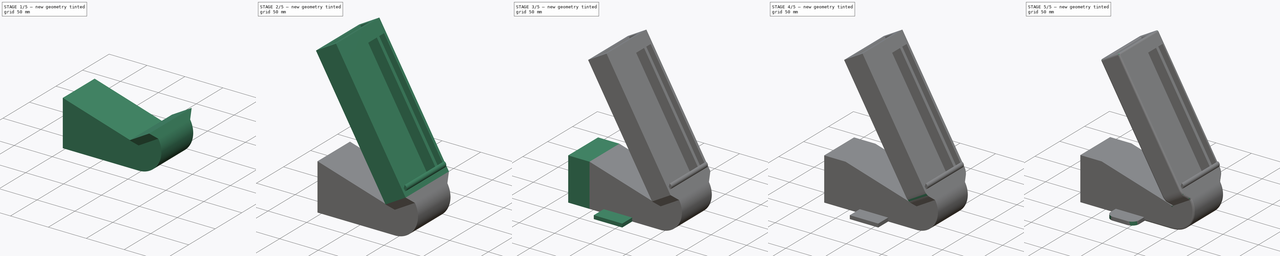
[diagram: build sequence overview — one tinted view per stage of 5, left to right]
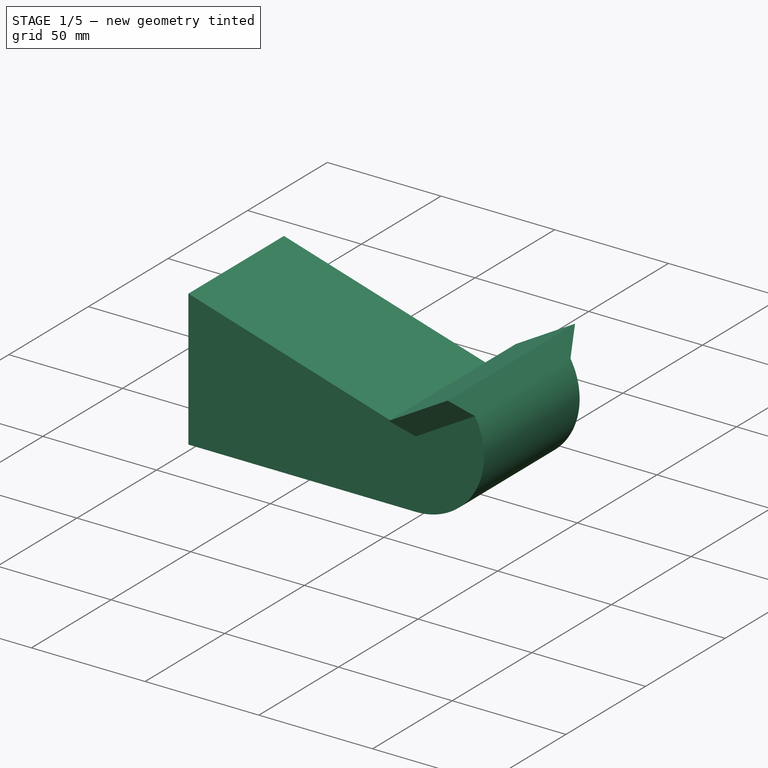
[diagram: stage 1 of 5 — iso view after this stage's code; geometry added in this stage tinted green]
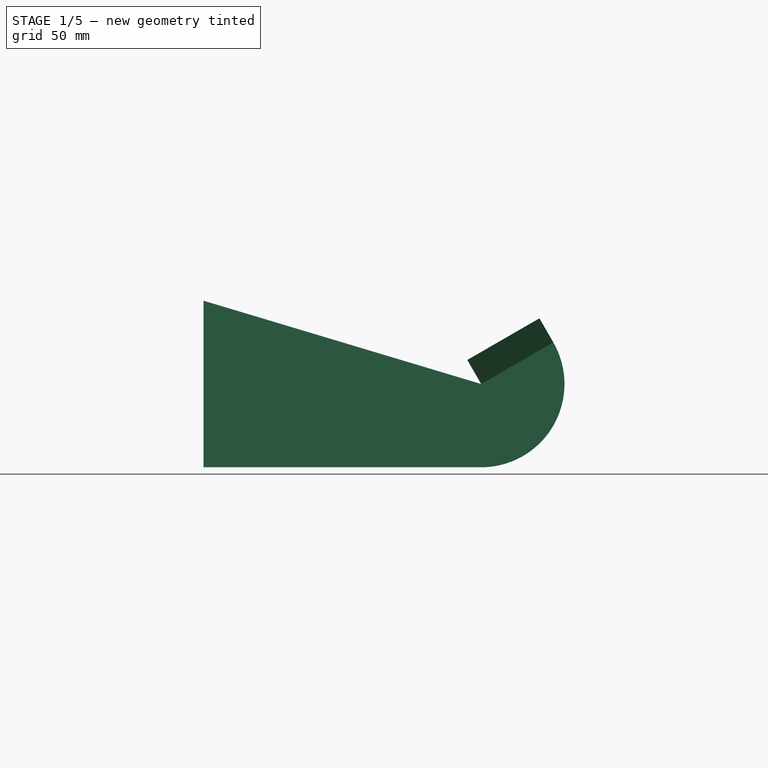
[diagram: stage 1 of 5 — front view after this stage's code; geometry added in this stage tinted green]
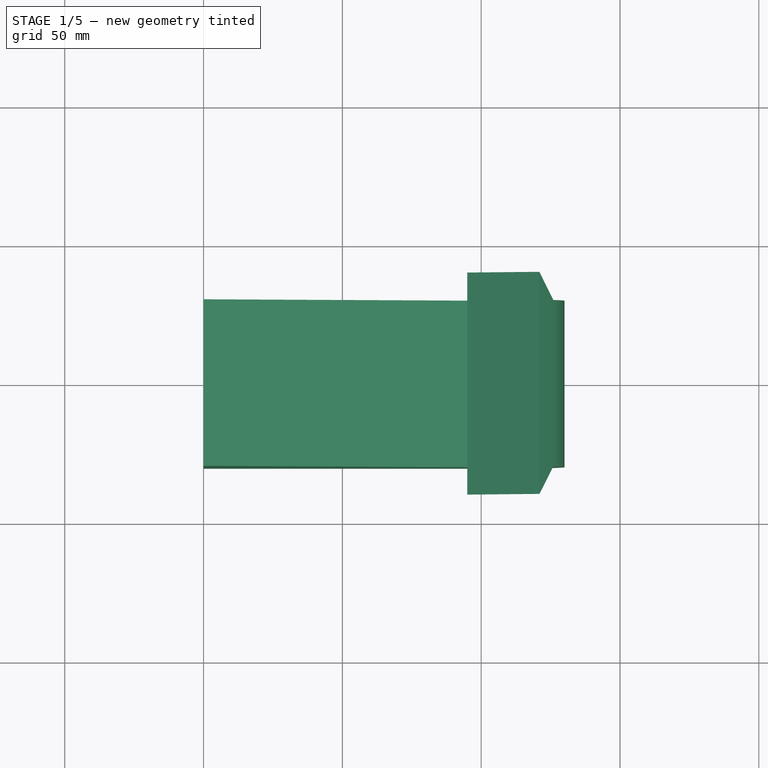
[diagram: stage 1 of 5 — top view after this stage's code; geometry added in this stage tinted green]
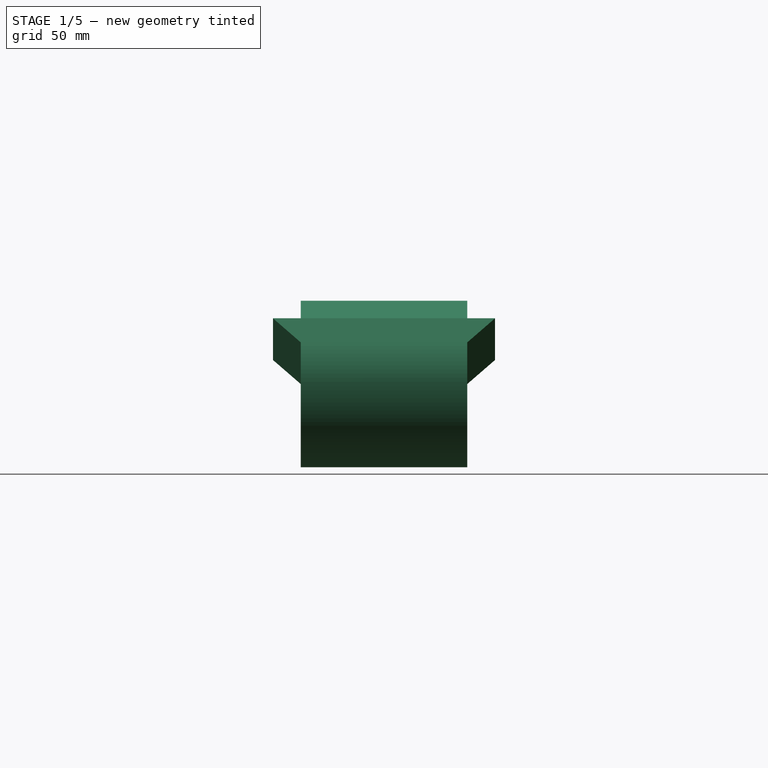
[diagram: stage 1 of 5 — right view after this stage's code; geometry added in this stage tinted green]
FCSTD DOCUMENT  (FreeCAD 1.0R39285 (Git))
Label: phone_cooling_system
License: All rights reserved
objects: Sketcher::SketchObject×13, PartDesign::Pocket×4, PartDesign::Fillet×4, PartDesign::Pad×3, PartDesign::Plane×2, PartDesign::AdditiveLoft×2, PartDesign::Revolution×2, PartDesign::Thickness×1, PartDesign::Hole×1, PartDesign::Body×1
note: 80 computed .brp shape members not serialized (recipe doc carries the construction recipe); baked Part::Feature solids carry a one-line shape summary decoded from their .brp

FEATURE [Sketcher::SketchObject] Sketch
  ArcFitTolerance = 1e-06
  AttachmentSupport = -> [YZ_Plane]
  FullyConstrained = true
  MakeInternals = false
  MapMode = 5
  Placement = pos=(0,0,0) rot=(0.57735,0.57735,0.57735;2.0944rad)
  sketch-geometry (4):
    g0: LineSegment StartX=-30 StartY=0 StartZ=0 EndX=30 EndY=0 EndZ=0
    g1: LineSegment StartX=30 StartY=0 StartZ=0 EndX=30 EndY=60 EndZ=0
    g2: LineSegment StartX=30 StartY=60 StartZ=0 EndX=-30 EndY=60 EndZ=0
    g3: LineSegment StartX=-30 StartY=60 StartZ=0 EndX=-30 EndY=0 EndZ=0
  constraints (12):
    c: Coincident(g0,g1)
    c: Coincident(g1,g2)
    c: Coincident(g2,g3)
    c: Coincident(g3,g0)
    c: Horizontal(g0)
    c: Horizontal(g2)
    c: Vertical(g1)
    c: Vertical(g3)
    c: Distance(g1,g3) = 60
    c: Distance(g0,g2) = 60
    c: PointOnObject(g0,g-1)
    c: Distance(g-2,g1) = 30
FEATURE [PartDesign::Plane] DatumPlane
  AttachmentOffset = pos=(0,0,100) rot=(0,0,1;0rad)
  AttachmentSupport = -> [YZ_Plane]
  Length = 130.582
  MapMode = 5
  Placement = pos=(100,0,0) rot=(0.57735,0.57735,0.57735;2.0944rad)
  ResizeMode = 0
  Width = 264.389
FEATURE [Sketcher::SketchObject] Sketch001
  ArcFitTolerance = 1e-06
  AttachmentSupport = -> [DatumPlane]
  FullyConstrained = true
  MakeInternals = false
  MapMode = 5
  Placement = pos=(100,0,0) rot=(0.57735,0.57735,0.57735;2.0944rad)
  sketch-geometry (4):
    g0: LineSegment StartX=-30 StartY=30 StartZ=0 EndX=-30 EndY=0 EndZ=0
    g1: LineSegment StartX=-30 StartY=0 StartZ=0 EndX=30 EndY=0 EndZ=0
    g2: LineSegment StartX=30 StartY=0 StartZ=0 EndX=30 EndY=30 EndZ=0
    g3: LineSegment StartX=30 StartY=30 StartZ=0 EndX=-30 EndY=30 EndZ=0
  constraints (12):
    c: Coincident(g0,g1)
    c: Coincident(g1,g2)
    c: Coincident(g2,g3)
    c: Coincident(g3,g0)
    c: Vertical(g0)
    c: Vertical(g2)
    c: Horizontal(g1)
    c: Horizontal(g3)
    c: PointOnObject(g0,g-1)
    c: Distance(g-2,g0) = 30
    c: DistanceX(g3,g3) = 60
    c: DistanceY(g2,g2) = 30
FEATURE [PartDesign::AdditiveLoft] AdditiveLoft
  Closed = false
  Placement = pos=(0,0,0) rot=(1,1,1;2.0944rad)
  Profile = -> Sketch
  Refine = true
  Ruled = false
  Sections = -> [Sketch001]
  Suppressed = false
FEATURE [Sketcher::SketchObject] Sketch002
  ArcFitTolerance = 1e-06
  AttachmentSupport = -> [DatumPlane]
  ExternalGeometry = -> [AdditiveLoft]
  FullyConstrained = true
  MakeInternals = false
  MapMode = 5
  Placement = pos=(100,0,0) rot=(0.57735,0.57735,0.57735;2.0944rad)
  sketch-geometry (4):
    g0: LineSegment StartX=-30 StartY=30 StartZ=0 EndX=-30 EndY=2.49e-14 EndZ=0
    g1: LineSegment StartX=-30 StartY=2.49e-14 StartZ=0 EndX=30 EndY=2.49e-14 EndZ=0
    g2: LineSegment StartX=30 StartY=2.49e-14 StartZ=0 EndX=30 EndY=30 EndZ=0
    g3: LineSegment StartX=30 StartY=30 StartZ=0 EndX=-30 EndY=30 EndZ=0
  constraints (11):
    c: Coincident(g0,g1)
    c: Coincident(g1,g2)
    c: Coincident(g2,g3)
    c: Coincident(g3,g0)
    c: Vertical(g0)
    c: Vertical(g2)
    c: Horizontal(g1)
    c: Horizontal(g3)
    c: Coincident(g0,g-3)
    c: DistanceY(g0,g0) = 30
    c: DistanceX(g3,g3) = 60
FEATURE [PartDesign::Revolution] Revolution
  Angle = 120
  Angle2 = 60
  Axis = (0,-1,3e-16)
  Base = (100,30,30)
  BaseFeature = -> AdditiveLoft
  Placement = pos=(0,0,0) rot=(1,1,1;2.0944rad)
  Profile = -> Sketch002
  ReferenceAxis = -> AdditiveLoft [Edge10]
  Refine = true
  Suppressed = false
  Type = 0
FEATURE [PartDesign::Plane] DatumPlane001
  AttachmentOffset = pos=(0,0,10) rot=(0,0,1;0rad)
  AttachmentSupport = -> [Revolution]
  Length = 131.964
  MapMode = 5
  Placement = pos=(7.00962,-6.8e-15,-12.141) rot=(0.250563,-0.250563,-0.935113;1.63783rad)
  ResizeMode = 0
  Width = 287.392
FEATURE [Sketcher::SketchObject] Sketch003
  ArcFitTolerance = 1e-06
  AttachmentSupport = -> [DatumPlane001]
  ExternalGeometry = -> [Revolution]
  FullyConstrained = true
  MakeInternals = false
  MapMode = 5
  Placement = pos=(7.00962,-6.8e-15,-12.141) rot=(0.250563,-0.250563,-0.935113;1.63783rad)
  sketch-geometry (4):
    g0: LineSegment StartX=-40 StartY=101.603 StartZ=0 EndX=40 EndY=101.603 EndZ=0
    g1: LineSegment StartX=40 StartY=101.603 StartZ=0 EndX=40 EndY=131.603 EndZ=0
    g2: LineSegment StartX=40 StartY=131.603 StartZ=0 EndX=-40 EndY=131.603 EndZ=0
    g3: LineSegment StartX=-40 StartY=131.603 StartZ=0 EndX=-40 EndY=101.603 EndZ=0
  constraints (12):
    c: Coincident(g0,g1)
    c: Coincident(g1,g2)
    c: Coincident(g2,g3)
    c: Coincident(g3,g0)
    c: Horizontal(g0)
    c: Horizontal(g2)
    c: Vertical(g1)
    c: Vertical(g3)
    c: DistanceX(g0,g0) = 80
    c: PointOnObject(g0,g-3)
    c: DistanceY(g3,g3) = 30
    c: Distance(g1,g-2) = 40
FEATURE [PartDesign::AdditiveLoft] AdditiveLoft001
  BaseFeature = -> Revolution
  Closed = false
  Placement = pos=(0,0,0) rot=(1,1,1;2.0944rad)
  Profile = -> Revolution [Edge10,Edge11,Edge6,Edge3]
  Refine = true
  Ruled = false
  Sections = -> [Sketch003]
  Suppressed = false
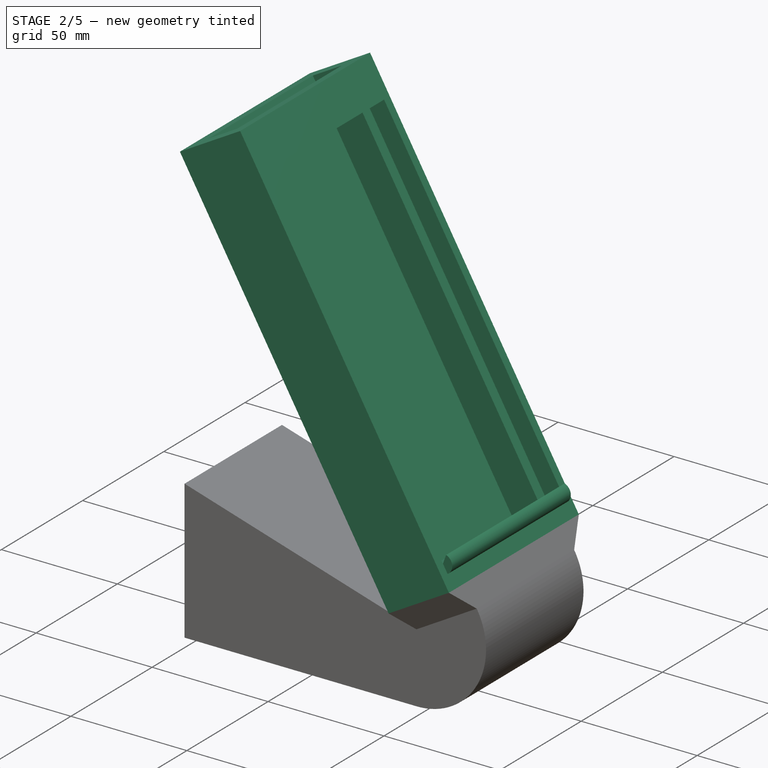
[diagram: stage 2 of 5 — iso view after this stage's code; geometry added in this stage tinted green]
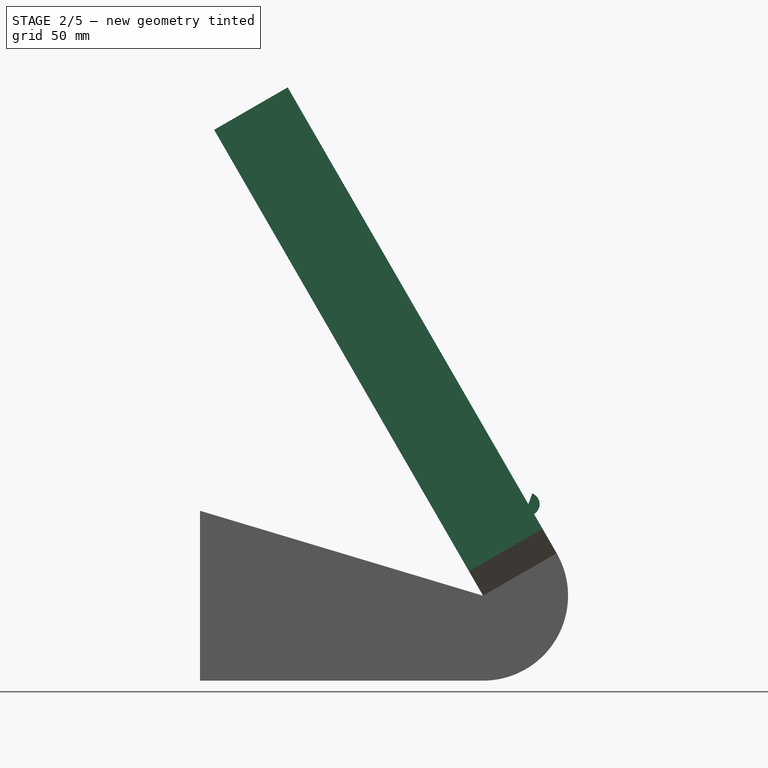
[diagram: stage 2 of 5 — front view after this stage's code; geometry added in this stage tinted green]
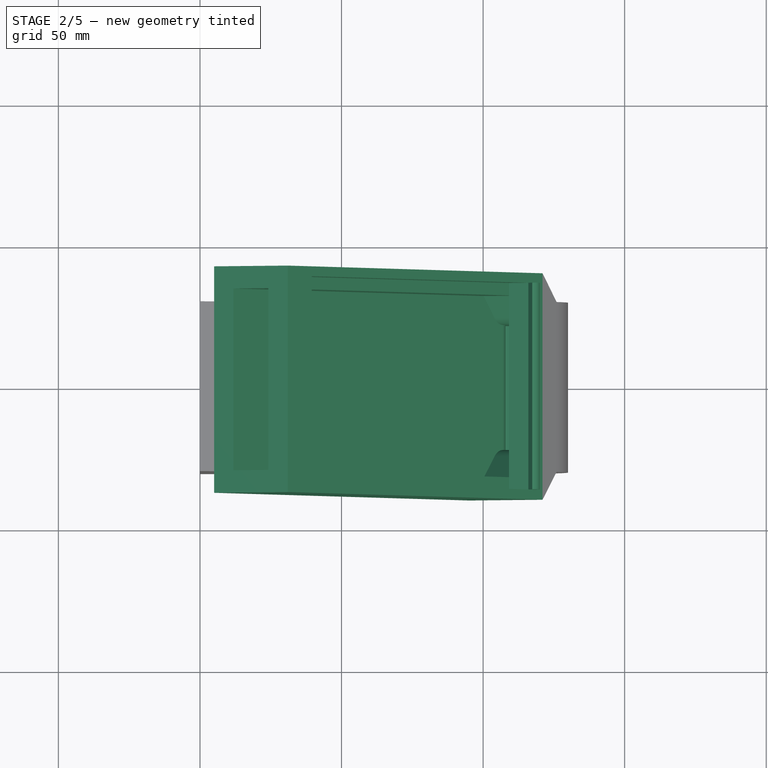
[diagram: stage 2 of 5 — top view after this stage's code; geometry added in this stage tinted green]
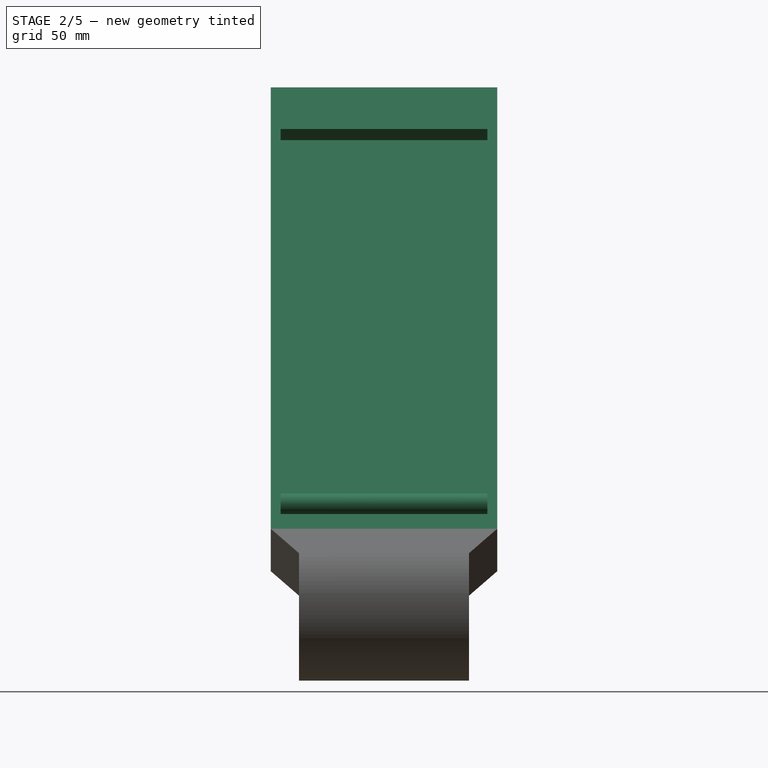
[diagram: stage 2 of 5 — right view after this stage's code; geometry added in this stage tinted green]
FEATURE [Sketcher::SketchObject] Sketch004
  ArcFitTolerance = 1e-06
  AttachmentSupport = -> [DatumPlane001]
  FullyConstrained = true
  MakeInternals = false
  MapMode = 5
  Placement = pos=(7.00962,-6.8e-15,-12.141) rot=(0.250563,-0.250563,-0.935113;1.63783rad)
FEATURE [PartDesign::Pad] Pad
  BaseFeature = -> AdditiveLoft001
  Direction = (-0.5,3e-16,0.866025)
  Length = 180
  Length2 = 10
  Placement = pos=(0,0,0) rot=(1,1,1;2.0944rad)
  Profile = -> AdditiveLoft001 [Edge24,Edge23,Edge11,Edge18]
  Refine = true
  Suppressed = false
  Type = 0
FEATURE [PartDesign::Thickness] Thickness
  Base = -> Pad [Face8,Face16]
  BaseFeature = -> Pad
  Intersection = true
  Join = 0
  Mode = 2
  Refine = true
  Reversed = true
  SupportTransform = false
  Suppressed = false
  Value = 7.9
FEATURE [Sketcher::SketchObject] Sketch005
  ArcFitTolerance = 1e-06
  AttachmentSupport = -> [Thickness]
  FullyConstrained = true
  MakeInternals = false
  MapMode = 5
  Placement = pos=(113.971,5.26e-14,65.8013) rot=(0.447214,0.447214,0.774597;1.82348rad)
  sketch-geometry (4):
    g0: LineSegment StartX=-36.5 StartY=149 StartZ=0 EndX=-36.5 EndY=-4 EndZ=0
    g1: LineSegment StartX=-36.5 StartY=-4 StartZ=0 EndX=36.5 EndY=-4 EndZ=0
    g2: LineSegment StartX=36.5 StartY=-4 StartZ=0 EndX=36.5 EndY=149 EndZ=0
    g3: LineSegment StartX=36.5 StartY=149 StartZ=0 EndX=-36.5 EndY=149 EndZ=0
  constraints (12):
    c: Coincident(g0,g1)
    c: Coincident(g1,g2)
    c: Coincident(g2,g3)
    c: Coincident(g3,g0)
    c: Vertical(g0)
    c: Vertical(g2)
    c: Horizontal(g1)
    c: Horizontal(g3)
    c: Distance(g0,g2) = 73
    c: Distance(g1,g3) = 153
    c: Distance(g-2,g2) = 36.5
    c: Distance(g-1,g1) = 4
FEATURE [PartDesign::Pocket] Pocket
  BaseFeature = -> Thickness
  Direction = (-0.866025,-1e-16,-0.5)
  Length = 7.9
  Length2 = 5
  Profile = -> Sketch005
  ReferenceAxis = -> Sketch005 [N_Axis]
  Refine = true
  Suppressed = false
  Type = 0
FEATURE [Sketcher::SketchObject] Sketch006
  ArcFitTolerance = 1e-06
  AttachmentSupport = -> [Pocket]
  ExternalGeometry = -> [Pocket]
  FullyConstrained = true
  MakeInternals = false
  MapMode = 5
  Placement = pos=(113.971,5.26e-14,65.8013) rot=(0.447214,0.447214,0.774597;1.82348rad)
  sketch-geometry (4):
    g0: LineSegment StartX=-36.5 StartY=-4 StartZ=0 EndX=-36.5 EndY=-8 EndZ=0
    g1: LineSegment StartX=-36.5 StartY=-8 StartZ=0 EndX=36.5 EndY=-8 EndZ=0
    g2: LineSegment StartX=36.5 StartY=-8 StartZ=0 EndX=36.5 EndY=-4 EndZ=0
    g3: LineSegment StartX=36.5 StartY=-4 StartZ=0 EndX=-36.5 EndY=-4 EndZ=0
  constraints (11):
    c: Coincident(g0,g1)
    c: Coincident(g1,g2)
    c: Coincident(g2,g3)
    c: Coincident(g3,g0)
    c: Vertical(g0)
    c: Vertical(g2)
    c: Horizontal(g1)
    c: Horizontal(g3)
    c: Distance(g0,g2) = 73
    c: Distance(g1,g3) = 4
    c: Coincident(g0,g-3)
FEATURE [PartDesign::Revolution] Revolution001
  Angle = 130
  Angle2 = 60
  Axis = (-2e-16,1,1e-16)
  Base = (115.971,-36.5,62.3372)
  BaseFeature = -> Pocket
  Profile = -> Sketch006
  ReferenceAxis = -> Pocket [Edge56]
  Refine = true
  Reversed = true
  Suppressed = false
  Type = 0
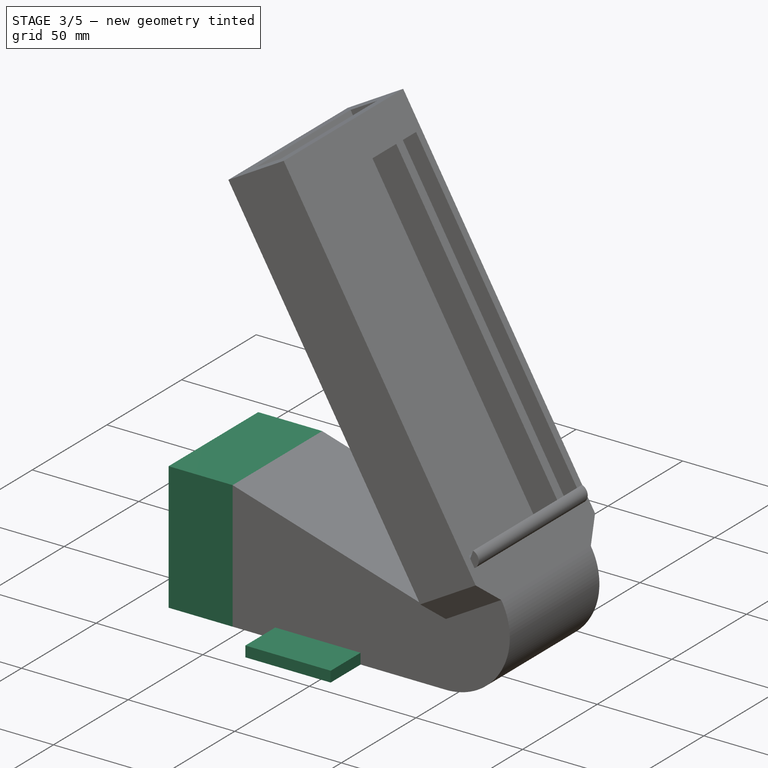
[diagram: stage 3 of 5 — iso view after this stage's code; geometry added in this stage tinted green]
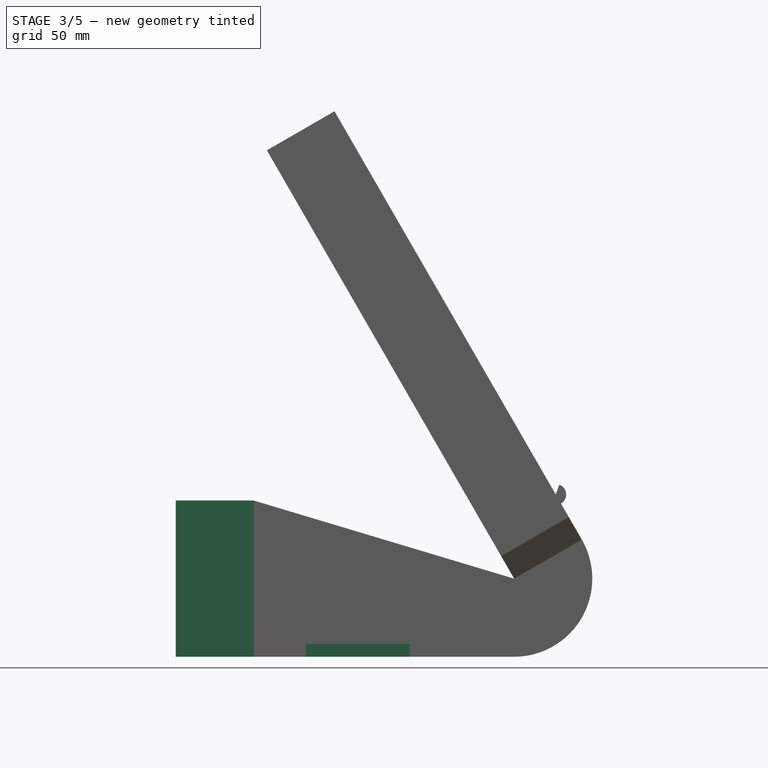
[diagram: stage 3 of 5 — front view after this stage's code; geometry added in this stage tinted green]
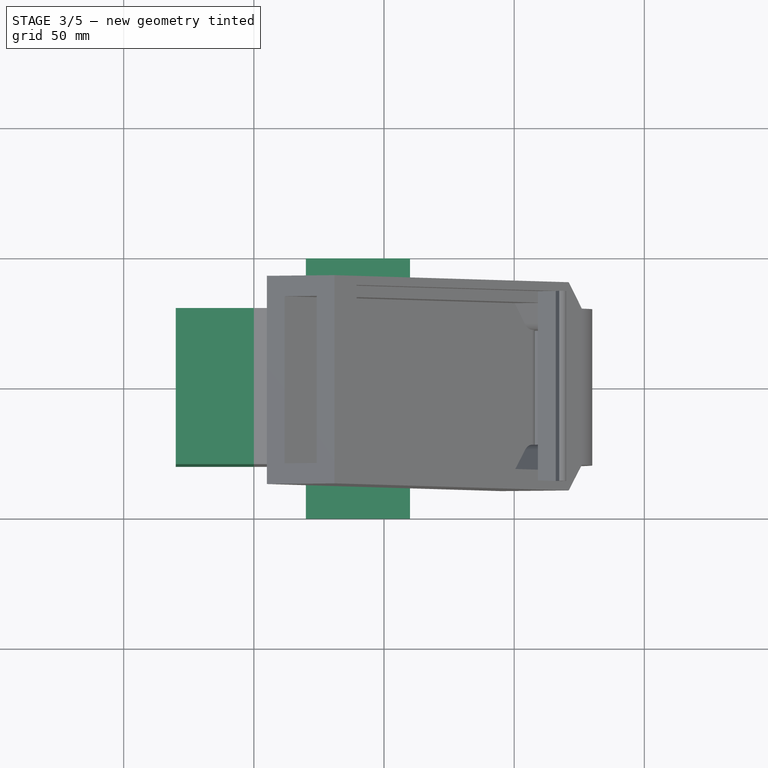
[diagram: stage 3 of 5 — top view after this stage's code; geometry added in this stage tinted green]
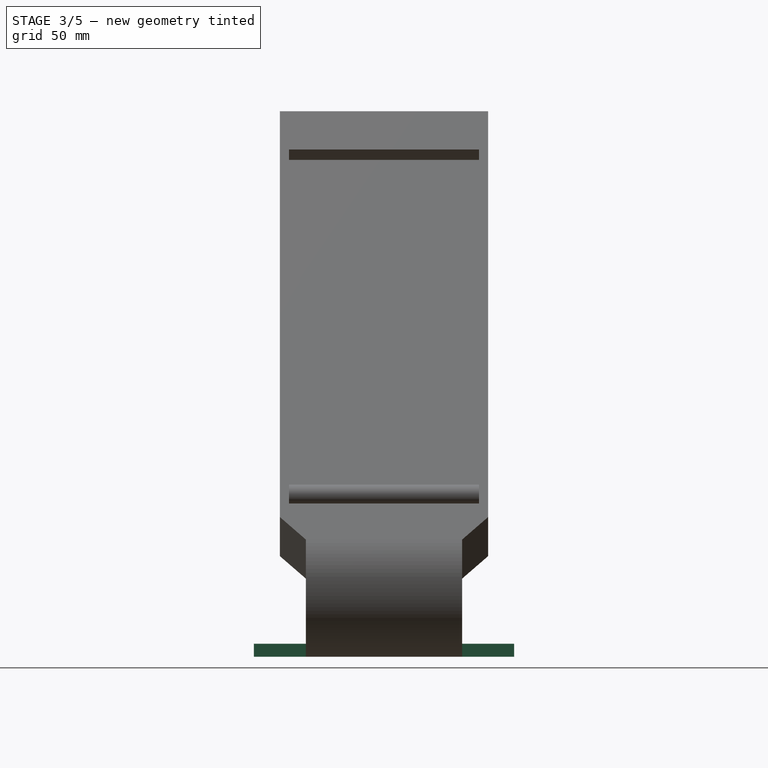
[diagram: stage 3 of 5 — right view after this stage's code; geometry added in this stage tinted green]
FEATURE [Sketcher::SketchObject] Sketch007
  ArcFitTolerance = 1e-06
  AttachmentSupport = -> [Revolution001]
  FullyConstrained = true
  MakeInternals = false
  MapMode = 5
  Placement = pos=(0,0,1e-16) rot=(1,0,0;3.14159rad)
  sketch-geometry (4):
    g0: LineSegment StartX=20 StartY=50 StartZ=0 EndX=20 EndY=-50 EndZ=0
    g1: LineSegment StartX=20 StartY=-50 StartZ=0 EndX=60 EndY=-50 EndZ=0
    g2: LineSegment StartX=60 StartY=-50 StartZ=0 EndX=60 EndY=50 EndZ=0
    g3: LineSegment StartX=60 StartY=50 StartZ=0 EndX=20 EndY=50 EndZ=0
  constraints (12):
    c: Coincident(g0,g1)
    c: Coincident(g1,g2)
    c: Coincident(g2,g3)
    c: Coincident(g3,g0)
    c: Vertical(g0)
    c: Vertical(g2)
    c: Horizontal(g1)
    c: Horizontal(g3)
    c: DistanceY(g2,g2) = 100
    c: DistanceX(g3,g3) = 40
    c: Distance(g-1,g3) = 50
    c: Distance(g-2,g0) = 20
FEATURE [PartDesign::Pad] Pad001
  BaseFeature = -> Revolution001
  Direction = (1.1e-15,0,-1)
  Length = 5
  Length2 = 10
  Profile = -> Sketch007
  ReferenceAxis = -> Sketch007 [N_Axis]
  Refine = true
  Reversed = true
  Suppressed = false
  Type = 0
FEATURE [Sketcher::SketchObject] Sketch008
  ArcFitTolerance = 1e-06
  AttachmentSupport = -> [Pad001]
  ExternalGeometry = -> [Pad001]
  FullyConstrained = true
  MakeInternals = false
  MapMode = 5
  Placement = pos=(0,0,0) rot=(0.57735,-0.57735,-0.57735;2.0944rad)
  sketch-geometry (4):
    g0: LineSegment StartX=-30 StartY=60 StartZ=0 EndX=-30 EndY=0 EndZ=0
    g1: LineSegment StartX=-30 StartY=0 StartZ=0 EndX=30 EndY=0 EndZ=0
    g2: LineSegment StartX=30 StartY=0 StartZ=0 EndX=30 EndY=60 EndZ=0
    g3: LineSegment StartX=30 StartY=60 StartZ=0 EndX=-30 EndY=60 EndZ=0
  constraints (11):
    c: Coincident(g0,g1)
    c: Coincident(g1,g2)
    c: Coincident(g2,g3)
    c: Coincident(g3,g0)
    c: Vertical(g0)
    c: Vertical(g2)
    c: Horizontal(g1)
    c: Horizontal(g3)
    c: Distance(g0,g2) = 60
    c: Coincident(g0,g-3)
    c: PointOnObject(g1,g-1)
FEATURE [PartDesign::Pad] Pad002
  BaseFeature = -> Pad001
  Direction = (-1,0,0)
  Length = 30
  Length2 = 10
  Profile = -> Sketch008
  ReferenceAxis = -> Sketch008 [N_Axis]
  Refine = true
  Suppressed = false
  Type = 0
FEATURE [Sketcher::SketchObject] Sketch009
  ArcFitTolerance = 1e-06
  AttachmentSupport = -> [Pad002]
  ExternalGeometry = -> [Pad002]
  FullyConstrained = true
  MakeInternals = false
  MapMode = 5
  Placement = pos=(-30,0,0) rot=(0.57735,-0.57735,-0.57735;2.0944rad)
  sketch-geometry (5):
    g0: LineSegment StartX=-20.75 StartY=9.25 StartZ=0 EndX=20.75 EndY=9.25 EndZ=0
    g1: LineSegment StartX=20.75 StartY=9.25 StartZ=0 EndX=20.75 EndY=50.75 EndZ=0
    g2: LineSegment StartX=20.75 StartY=50.75 StartZ=0 EndX=-20.75 EndY=50.75 EndZ=0
    g3: LineSegment StartX=-20.75 StartY=50.75 StartZ=0 EndX=-20.75 EndY=9.25 EndZ=0
    g4: GeomPoint [constr] X=2e-16 Y=30 Z=0
  constraints (13):
    c: Coincident(g0,g1)
    c: Coincident(g1,g2)
    c: Coincident(g2,g3)
    c: Coincident(g3,g0)
    c: Horizontal(g0)
    c: Horizontal(g2)
    c: Vertical(g1)
    c: Vertical(g3)
    c: Symmetric(g2,g0,g4)
    c: Distance(g1,g3) = 41.5
    c: Distance(g0,g2) = 41.5
    c: Distance(g4,g-3) = 30
    c: Distance(g4,g-4) = 30
FEATURE [PartDesign::Pocket] Pocket001
  BaseFeature = -> Pad002
  Direction = (1,0,0)
  Length = 12
  Length2 = 5
  Profile = -> Sketch009
  ReferenceAxis = -> Sketch009 [N_Axis]
  Refine = true
  Suppressed = false
  Type = 0
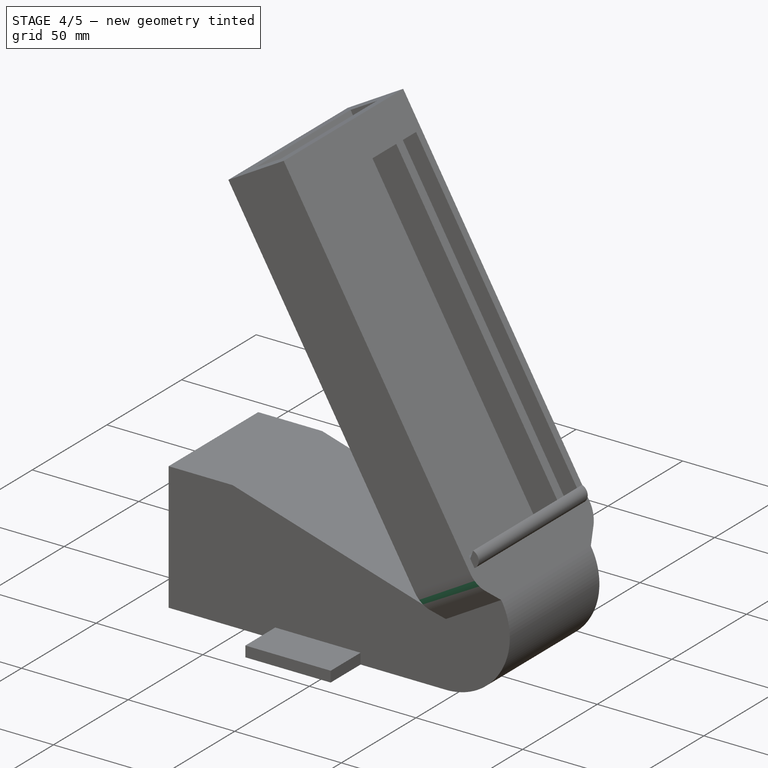
[diagram: stage 4 of 5 — iso view after this stage's code; geometry added in this stage tinted green]
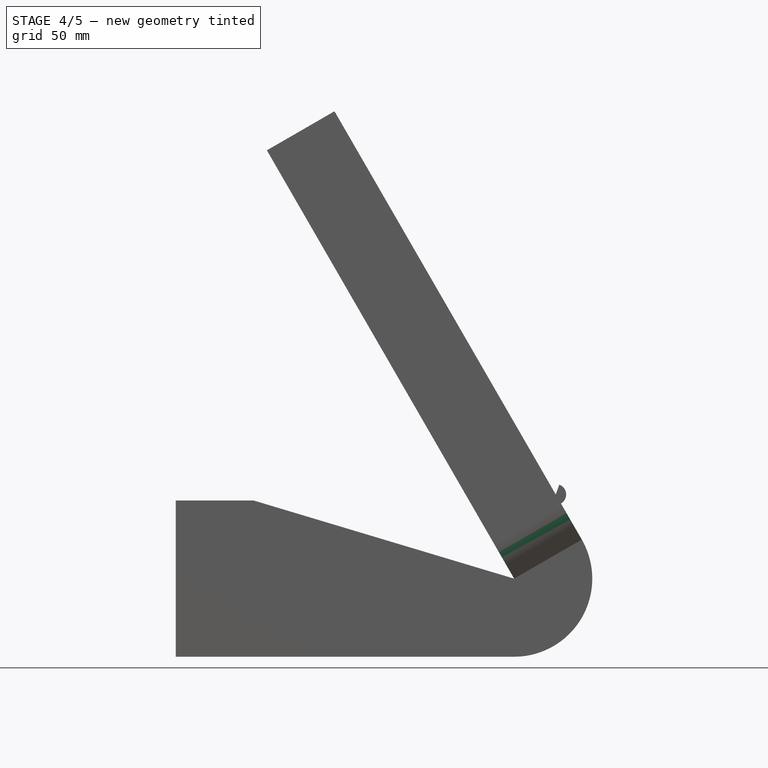
[diagram: stage 4 of 5 — front view after this stage's code; geometry added in this stage tinted green]
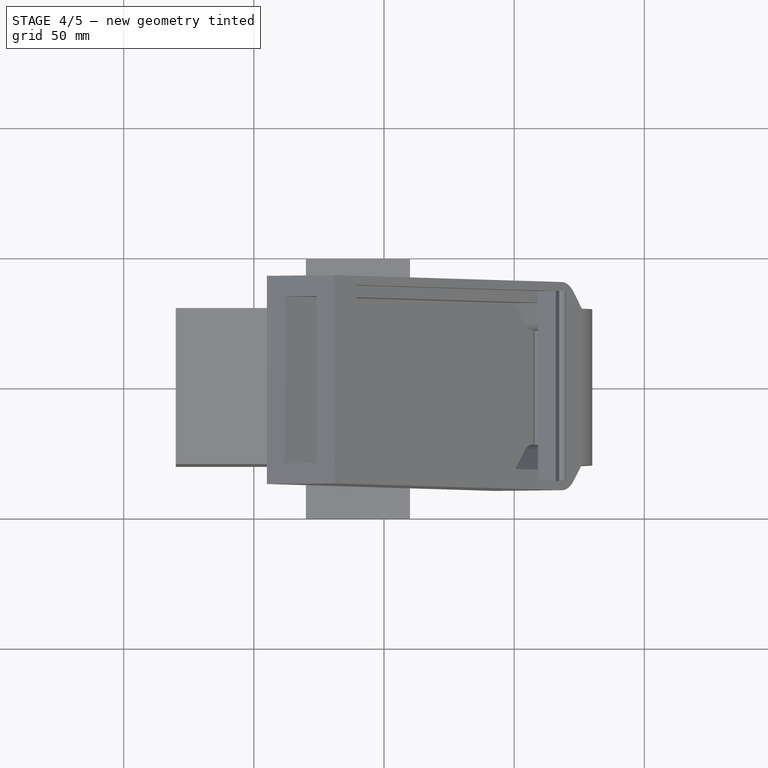
[diagram: stage 4 of 5 — top view after this stage's code; geometry added in this stage tinted green]
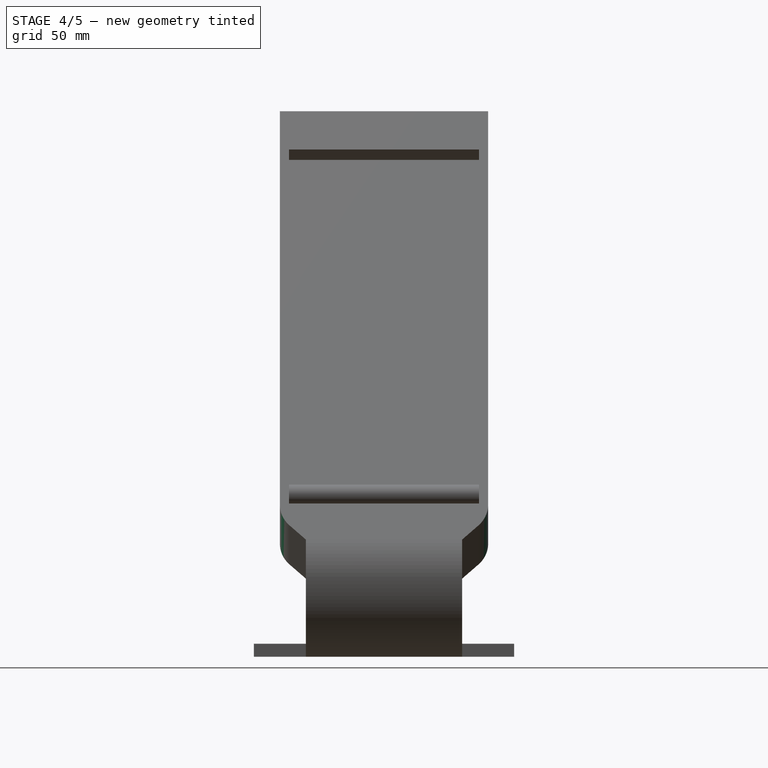
[diagram: stage 4 of 5 — right view after this stage's code; geometry added in this stage tinted green]
FEATURE [Sketcher::SketchObject] Sketch010
  ArcFitTolerance = 1e-06
  AttachmentSupport = -> [Pocket001]
  ExternalGeometry = -> [Pocket001]
  FullyConstrained = true
  MakeInternals = false
  MapMode = 5
  Placement = pos=(-18,0,0) rot=(0.57735,-0.57735,-0.57735;2.0944rad)
  sketch-geometry (1):
    g0: Circle CenterX=0 CenterY=30 CenterZ=0 NormalX=0 NormalY=0 NormalZ=1 AngleXU=0 Radius=1.5
  constraints (3):
    c: Diameter(g0) = 3
    c: PointOnObject(g0,g-2)
    c: Distance(g0,g-3) = 30
FEATURE [PartDesign::Hole] Hole
  BaseFeature = -> Pocket001
  CustomThreadClearance = 0
  Depth = 25
  DepthType = 0
  Diameter = 38
  DrillForDepth = false
  DrillPoint = 1
  DrillPointAngle = 118
  HoleCutCountersinkAngle = 90
  HoleCutCustomValues = false
  HoleCutDepth = 0
  HoleCutDiameter = 6.1
  HoleCutType = 0
  ModelThread = false
  Profile = -> Sketch010 [Edge1]
  Refine = true
  Suppressed = false
  Tapered = false
  TaperedAngle = 90
  ThreadClass = 0
  ThreadDepth = 25
  ThreadDepthType = 0
  ThreadDirection = 0
  ThreadFit = 0
  ThreadSize = 0
  ThreadType = 0
  Threaded = false
  UseCustomThreadClearance = false
FEATURE [Sketcher::SketchObject] Sketch011
  ArcFitTolerance = 1e-06
  AttachmentSupport = -> [Hole]
  ExternalGeometry = -> [Hole]
  FullyConstrained = false
  MakeInternals = false
  MapMode = 5
  Placement = pos=(-18,0,0) rot=(0.57735,-0.57735,-0.57735;2.0944rad)
  sketch-geometry (4):
    g0: Circle CenterX=-16 CenterY=46 CenterZ=0 NormalX=0 NormalY=0 NormalZ=1 AngleXU=0 Radius=1.5
    g1: Circle CenterX=16 CenterY=46 CenterZ=0 NormalX=0 NormalY=0 NormalZ=1 AngleXU=0 Radius=1.5
    g2: Circle CenterX=-16 CenterY=14 CenterZ=0 NormalX=0 NormalY=0 NormalZ=1 AngleXU=0 Radius=1.5
    g3: Circle CenterX=16 CenterY=14 CenterZ=0 NormalX=0 NormalY=0 NormalZ=1 AngleXU=0 Radius=1.5
  constraints (6):
    c: DistanceX(g0,g-1) = 16
    c: DistanceY(g-7,g0) = 16
    c: Diameter(g0) = 3
    c: Diameter(g1) = 3
    c: Diameter(g3) = 3
    c: Diameter(g2) = 3
FEATURE [PartDesign::Pocket] Pocket002
  BaseFeature = -> Hole
  Direction = (1,0,0)
  Length = 10
  Length2 = 5
  Profile = -> Sketch011
  ReferenceAxis = -> Sketch011 [N_Axis]
  Refine = true
  Suppressed = false
  Type = 0
FEATURE [Sketcher::SketchObject] Sketch012
  ArcFitTolerance = 1e-06
  AttachmentSupport = -> [Pocket002]
  ExternalGeometry = -> [Pocket002]
  FullyConstrained = false
  MakeInternals = false
  MapMode = 5
  Placement = pos=(-30,0,0) rot=(0.57735,-0.57735,-0.57735;2.0944rad)
  sketch-geometry (4):
    g0: LineSegment StartX=-8.60294 StartY=9.25 StartZ=0 EndX=-33.2148 EndY=9.25 EndZ=0
    g1: LineSegment StartX=-33.2148 StartY=9.25 StartZ=0 EndX=-33.2148 EndY=0 EndZ=0
    g2: LineSegment StartX=-33.2148 StartY=0 StartZ=0 EndX=-12.9248 EndY=0 EndZ=0
    g3: LineSegment StartX=-12.9248 StartY=0 StartZ=0 EndX=-8.60294 EndY=9.25 EndZ=0
  constraints (9):
    c: PointOnObject(g0,g-3)
    c: Horizontal(g0)
    c: Coincident(g0,g1)
    c: PointOnObject(g1,g-1)
    c: Vertical(g1)
    c: Coincident(g1,g2)
    c: Horizontal(g2)
    c: Coincident(g2,g3)
    c: Coincident(g3,g0)
FEATURE [PartDesign::Pocket] Pocket003
  BaseFeature = -> Pocket002
  Direction = (1,0,0)
  Length = 5
  Length2 = 5
  Profile = -> Sketch012
  ReferenceAxis = -> Sketch012 [N_Axis]
  Refine = true
  Suppressed = false
  Type = 0
FEATURE [PartDesign::Fillet] Fillet
  Base = -> Pocket003 [Edge30,Edge18]
  BaseFeature = -> Pocket003
  Radius = 13
  Refine = true
  SupportTransform = false
  Suppressed = false
  UseAllEdges = false
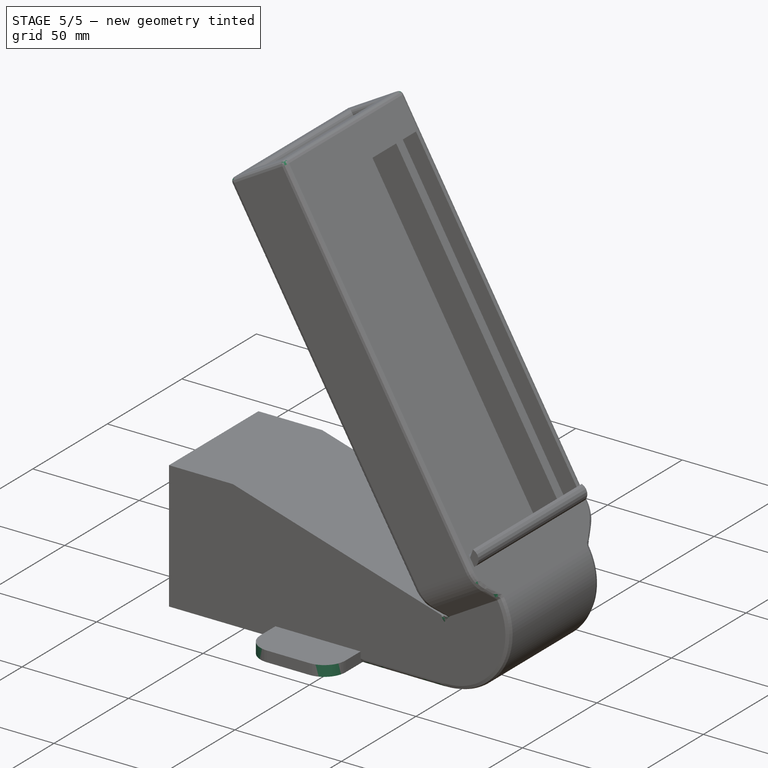
[diagram: stage 5 of 5 — iso view after this stage's code; geometry added in this stage tinted green]
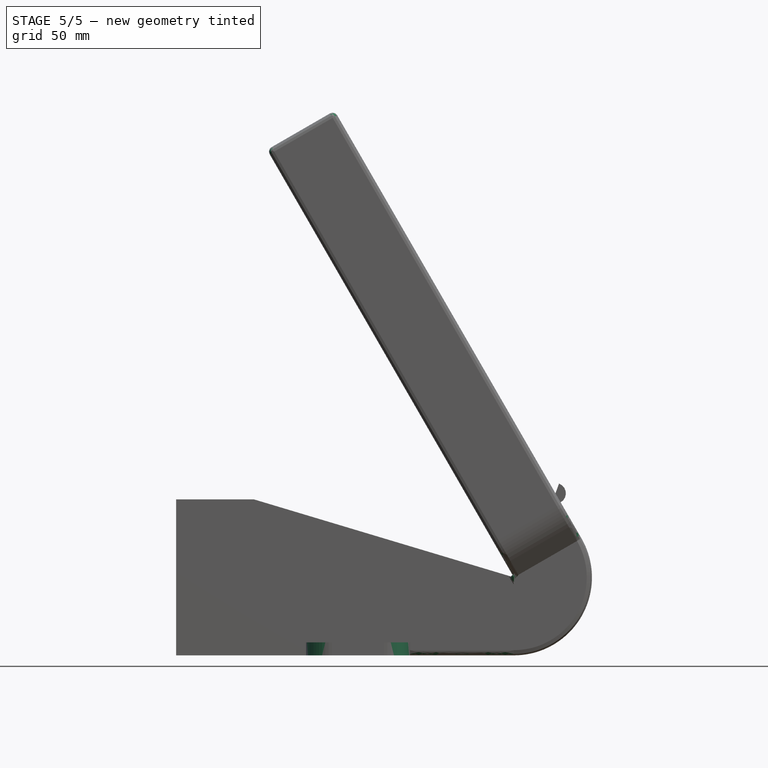
[diagram: stage 5 of 5 — front view after this stage's code; geometry added in this stage tinted green]
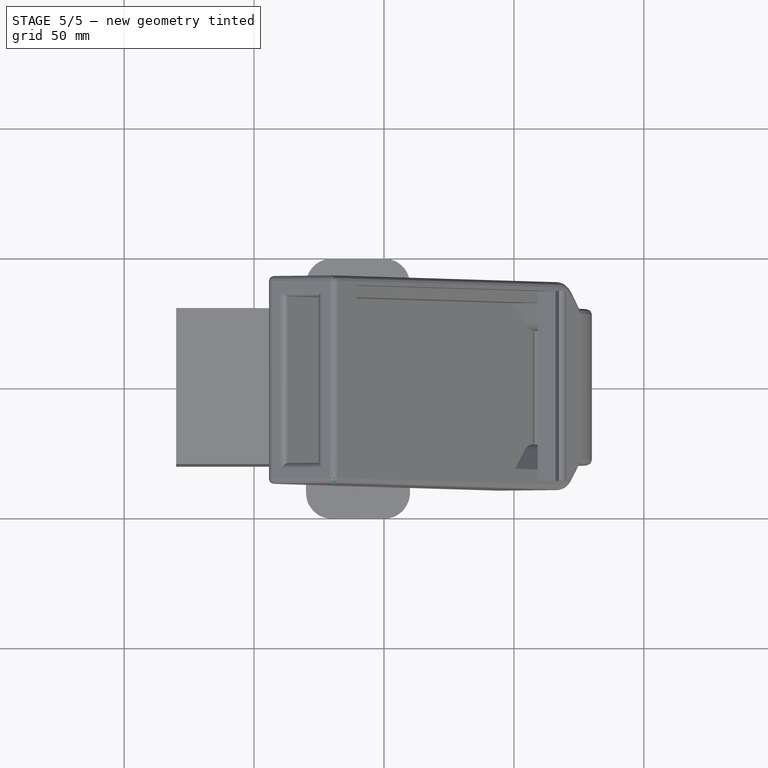
[diagram: stage 5 of 5 — top view after this stage's code; geometry added in this stage tinted green]
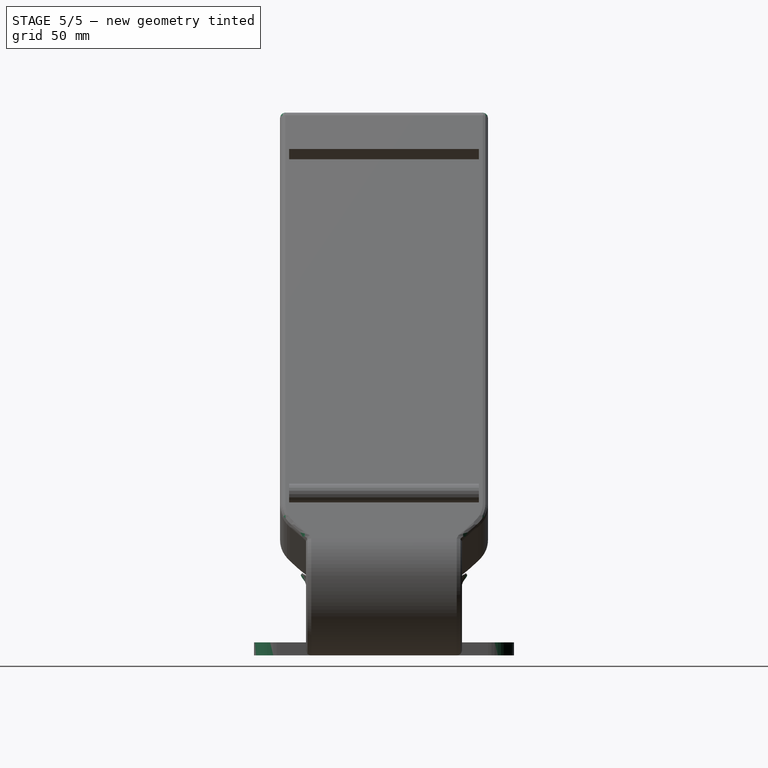
[diagram: stage 5 of 5 — right view after this stage's code; geometry added in this stage tinted green]
FEATURE [PartDesign::Fillet] Fillet001
  Base = -> Fillet [Edge70,Edge71,Edge1,Edge13,Edge5,Edge31]
  BaseFeature = -> Fillet
  Radius = 2
  Refine = true
  SupportTransform = false
  Suppressed = false
  UseAllEdges = false
FEATURE [PartDesign::Fillet] Fillet002
  Base = -> Fillet001 [Edge23,Edge22,Edge21,Edge20,Edge13,Edge16,Edge15,Edge1,Edge14,Edge18,Edge19,Edge17]
  BaseFeature = -> Fillet001
  Radius = 2
  Refine = true
  SupportTransform = false
  Suppressed = false
  UseAllEdges = false
FEATURE [PartDesign::Fillet] Fillet003
  Base = -> Fillet002 [Edge182,Edge179,Edge176,Edge180]
  BaseFeature = -> Fillet002
  Radius = 10
  Refine = true
  SupportTransform = false
  Suppressed = false
  UseAllEdges = false
FEATURE [PartDesign::Body] Body  label="coolerPart"
  AllowCompound = false
  Group = -> [Sketch,DatumPlane,Sketch001,AdditiveLoft,Sketch002,Revolution,DatumPlane001,Sketch003,AdditiveLoft001,Sketch004,Pad,Thickness,Sketch005,Pocket,Sketch006,Revolution001,Sketch007,Pad001,Sketch008,Pad002,Sketch009,Pocket001,Sketch010,Hole,Sketch011,Pocket002,Sketch012,Pocket003,Fillet,Fillet001,Fillet002,Fillet003]
  Origin = -> Origin
  Placement = pos=(0,0,0) rot=(0,0,1;4.71239rad)
  Tip = -> Fillet003
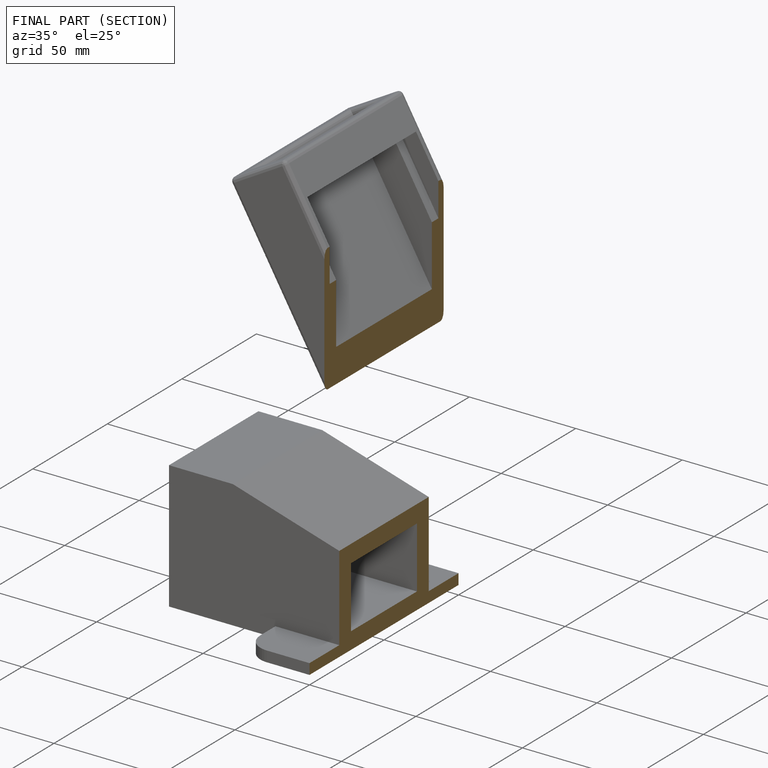
[diagram: finished part — half-section view (interior)]
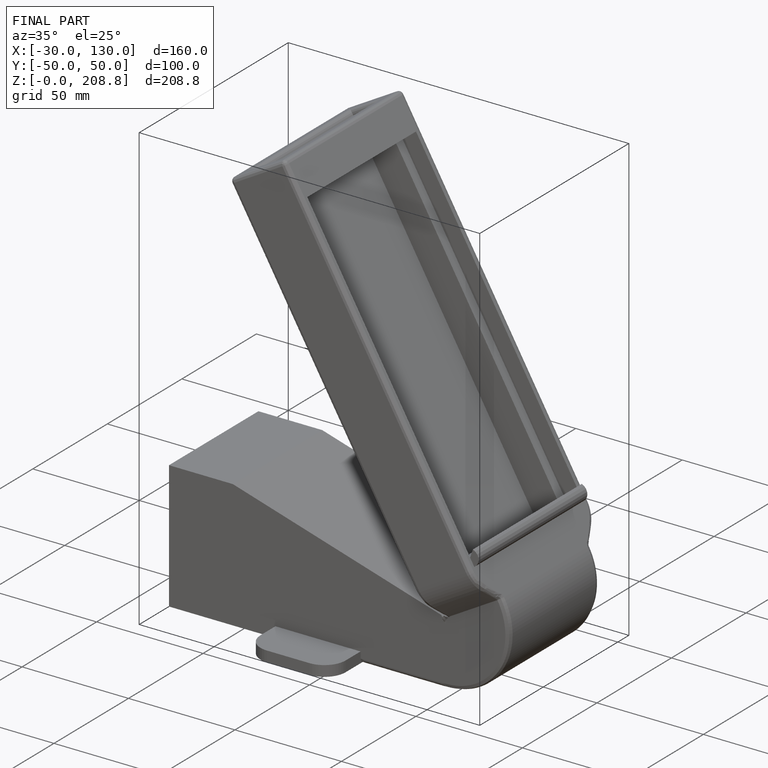
[diagram: finished part — iso view with bounding-box wireframe]
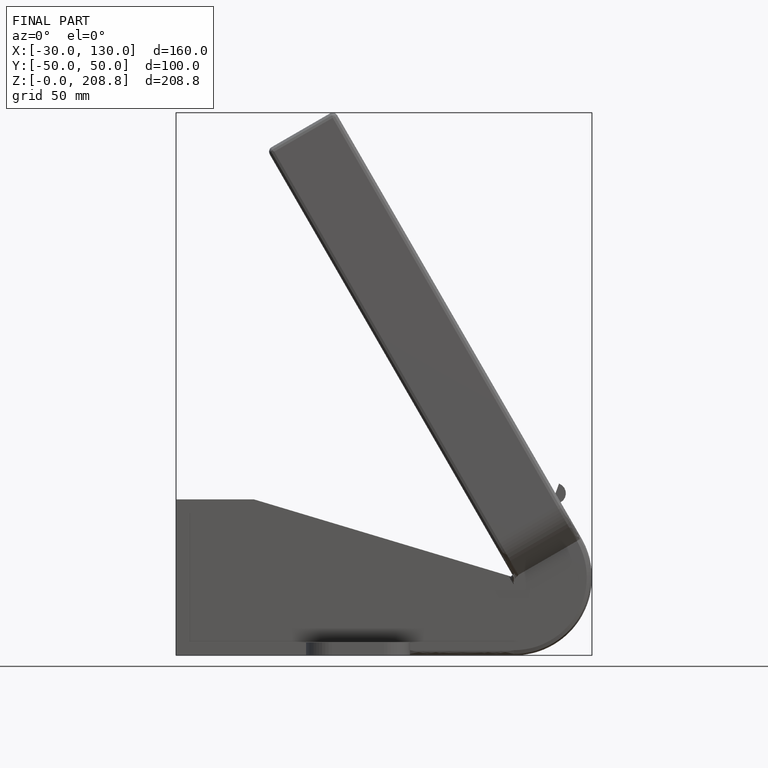
[diagram: finished part — front view with bounding-box wireframe]
